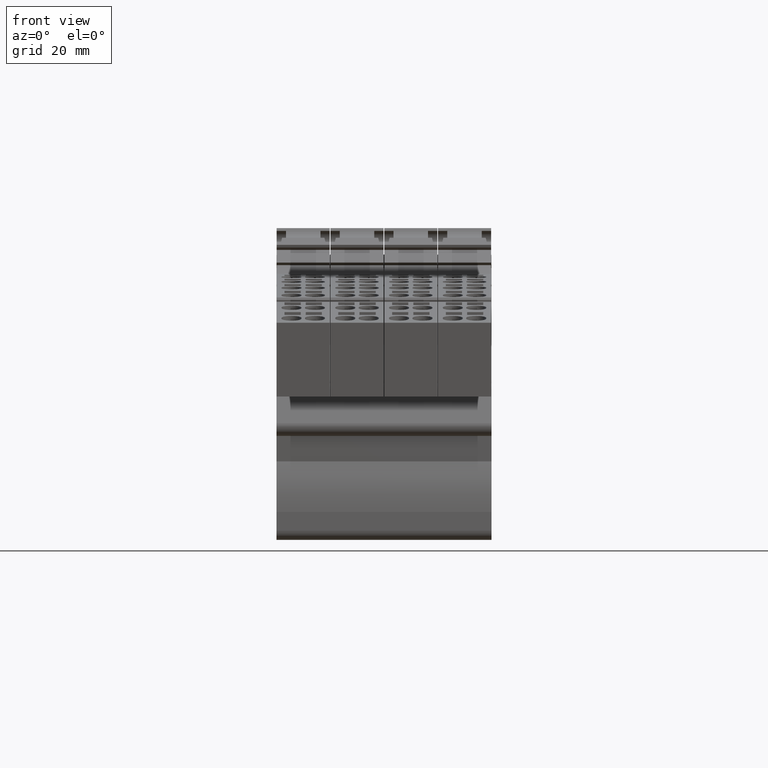
[diagram: clean part render]
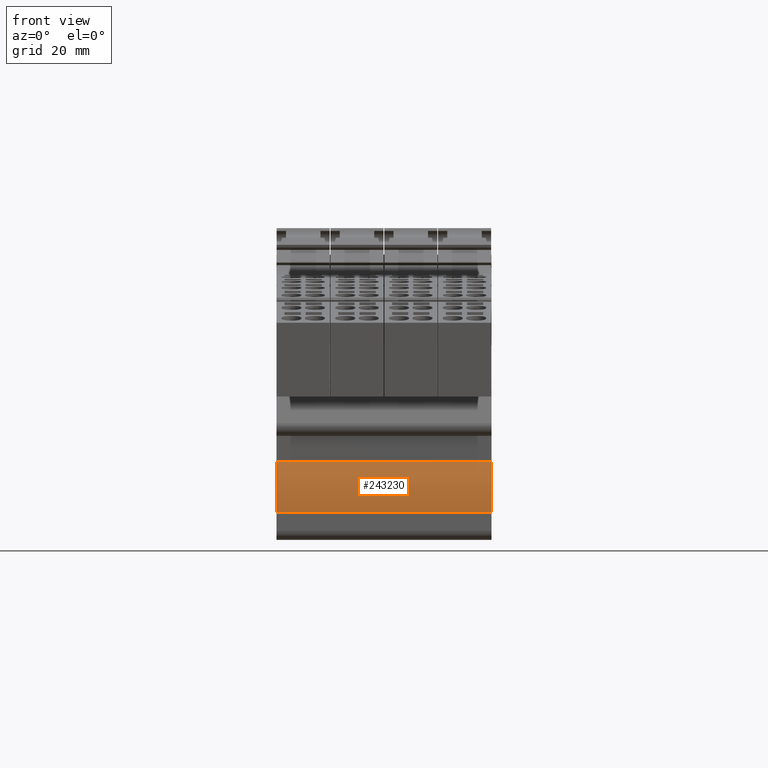
[diagram: same view with one face highlighted and labeled with its STEP entity id]
A machine part, front view. The second image highlights one B-rep face of the part: STEP entity #243230.
In plain terms, the highlighted cylindrical surface (partial cylindrical patch) has radius 30 mm, axis along (1, 0, 0).
Its self-contained STEP definition (entity closure, byte-faithful):
#221320=CARTESIAN_POINT('',(176.802689507967,-56.6770591260167,36.45));
#221330=VERTEX_POINT('',#221320);
#221360=CARTESIAN_POINT('',(206.774136155416,-57.9856407469761,36.45));
#221370=DIRECTION('',(0.,0.,1.));
#221380=DIRECTION('',(1.,-1.05193631583234E-14,0.));
#221390=AXIS2_PLACEMENT_3D('',#221360,#221370,#221380);
#221400=CIRCLE('',#221390,29.9999999999933);
#221410=CARTESIAN_POINT('',(179.617847465003,-45.2366806104568,36.45));
#221420=VERTEX_POINT('',#221410);
#221430=EDGE_CURVE('',#221420,#221330,#221400,.T.);
#225540=CARTESIAN_POINT('',(179.617847465003,-45.2366806104568,-12.15));
#225550=VERTEX_POINT('',#225540);
#225580=CARTESIAN_POINT('',(206.774136155416,-57.9856407469761,-12.15));
#225590=DIRECTION('',(0.,0.,1.));
#225600=DIRECTION('',(1.,-1.05193631583234E-14,0.));
#225610=AXIS2_PLACEMENT_3D('',#225580,#225590,#225600);
#225620=CIRCLE('',#225610,29.9999999999933);
#225630=CARTESIAN_POINT('',(176.802689507967,-56.6770591260167,-12.15));
#225640=VERTEX_POINT('',#225630);
#225650=EDGE_CURVE('',#225550,#225640,#225620,.T.);
#237390=CARTESIAN_POINT('',(179.617847465003,-45.2366806104568,
6.14999999999999));
#237400=DIRECTION('',(0.,0.,1.));
#237410=VECTOR('',#237400,1.);
#237420=LINE('',#237390,#237410);
#237430=EDGE_CURVE('',#225550,#221420,#237420,.T.);
#243070=CARTESIAN_POINT('',(206.774136155416,-57.9856407469761,
6.14999999999999));
#243080=DIRECTION('',(0.,0.,1.));
#243090=DIRECTION('',(1.,-1.05193631583234E-14,0.));
#243100=AXIS2_PLACEMENT_3D('',#243070,#243080,#243090);
#243110=CYLINDRICAL_SURFACE('',#243100,29.9999999999933);
#243120=ORIENTED_EDGE('',*,*,#225650,.T.);
#243130=ORIENTED_EDGE('',*,*,#237430,.F.);
#243140=ORIENTED_EDGE('',*,*,#221430,.F.);
#243150=CARTESIAN_POINT('',(176.802689507967,-56.6770591260167,
6.14999999999999));
#243160=DIRECTION('',(0.,0.,1.));
#243170=VECTOR('',#243160,1.);
#243180=LINE('',#243150,#243170);
#243190=EDGE_CURVE('',#225640,#221330,#243180,.T.);
#243200=ORIENTED_EDGE('',*,*,#243190,.T.);
#243210=EDGE_LOOP('',(#243200,#243140,#243130,#243120));
#243220=FACE_OUTER_BOUND('',#243210,.T.);
#243230=ADVANCED_FACE('',(#243220),#243110,.T.);